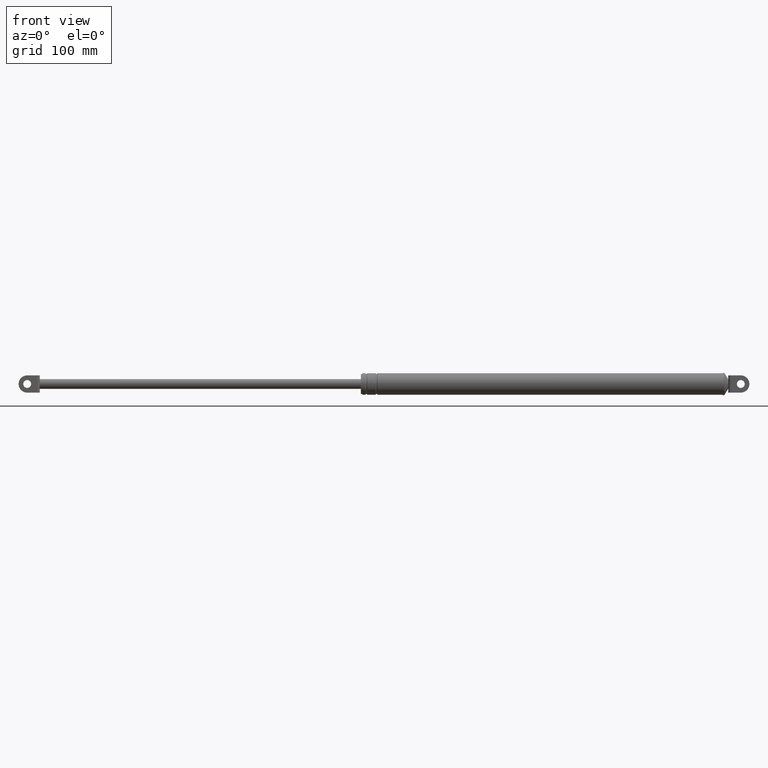
[diagram: clean part render]
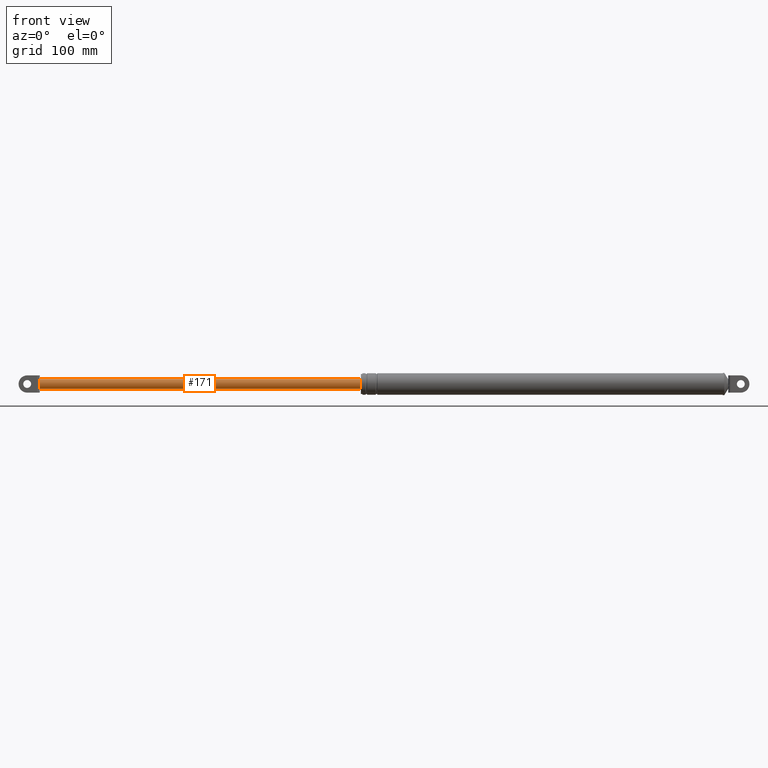
[diagram: same view with one face highlighted and labeled with its STEP entity id]
A machine part, front view. The second image highlights one B-rep face of the part: STEP entity #171.
In plain terms, the highlighted cylindrical surface (edge-blend (fillet) strip) has radius 6.25 mm, axis along (1, 0, 0).
Its self-contained STEP definition (entity closure, byte-faithful):
#171=ADVANCED_FACE('',(#777),#776,.T.);
#776=CYLINDRICAL_SURFACE('',#1374,6.25000000000E+000);
#777=FACE_OUTER_BOUND('',#1375,.T.);
#1371=CARTESIAN_POINT('',(0.00000000000E+000,0.00000000000E+000,1.76355077162E+002));
#1372=DIRECTION('',(1.00000000000E+000,-0.00000000000E+000,-0.00000000000E+000));
#1373=DIRECTION('',(-0.00000000000E+000,-0.00000000000E+000,-1.00000000000E+000));
#1374=AXIS2_PLACEMENT_3D('',#1371,#1372,#1373);
#1375=EDGE_LOOP('',(#1686,#1687,#1688,#1689,#1690,#1691));
#1686=ORIENTED_EDGE('',*,*,#1832,.F.);
#1687=ORIENTED_EDGE('',*,*,#1811,.F.);
#1688=ORIENTED_EDGE('',*,*,#1841,.F.);
#1689=ORIENTED_EDGE('',*,*,#1858,.T.);
#1690=ORIENTED_EDGE('',*,*,#1826,.T.);
#1691=ORIENTED_EDGE('',*,*,#1859,.F.);
#1811=EDGE_CURVE('',#2542,#2549,#2550,.T.);
#1826=EDGE_CURVE('',#2651,#2652,#2653,.T.);
#1832=EDGE_CURVE('',#2549,#2691,#2692,.T.);
#1841=EDGE_CURVE('',#2746,#2542,#2753,.T.);
#1858=EDGE_CURVE('',#2746,#2651,#2862,.T.);
#1859=EDGE_CURVE('',#2691,#2652,#2868,.T.);
#2542=VERTEX_POINT('',#3336);
#2549=VERTEX_POINT('',#3341);
#2550=CIRCLE('',#3345,6.25000000000E+000);
#2651=VERTEX_POINT('',#3414);
#2652=VERTEX_POINT('',#3415);
#2653=CIRCLE('',#3419,6.25000000000E+000);
#2691=VERTEX_POINT('',#3439);
#2692=CIRCLE('',#3443,6.25000000000E+000);
#2746=VERTEX_POINT('',#3475);
#2753=CIRCLE('',#3483,6.25000000000E+000);
#2862=(BOUNDED_CURVE() B_SPLINE_CURVE(1,(#3544,#3545),.UNSPECIFIED.,.F.,.F.) B_SPLINE_CURVE_WITH_KNOTS((2,2),(2.33100232674E-002,9.76689976703E-001),.UNSPECIFIED.) CURVE() GEOMETRIC_REPRESENTATION_ITEM() RATIONAL_B_SPLINE_CURVE((1.00000000000E+000,1.00000000000E+000)) REPRESENTATION_ITEM('') );
#2868=(BOUNDED_CURVE() B_SPLINE_CURVE(1,(#3546,#3547),.UNSPECIFIED.,.F.,.F.) B_SPLINE_CURVE_WITH_KNOTS((2,2),(2.33100233100E-002,9.76689976690E-001),.UNSPECIFIED.) CURVE() GEOMETRIC_REPRESENTATION_ITEM() RATIONAL_B_SPLINE_CURVE((7.50000000000E-001,7.50000000000E-001)) REPRESENTATION_ITEM('') );
#3336=CARTESIAN_POINT('',(-1.97266142833E+002,-5.49999700000E+000,1.73386486082E+002));
#3341=CARTESIAN_POINT('',(-1.97266142833E+002,-5.49999700000E+000,1.79323668242E+002));
#3342=CARTESIAN_POINT('',(-1.97266142833E+002,0.00000000000E+000,1.76355077162E+002));
#3343=DIRECTION('',(-1.00000000000E+000,0.00000000000E+000,0.00000000000E+000));
#3344=DIRECTION('',(-0.00000000000E+000,-0.00000000000E+000,-1.00000000000E+000));
#3345=AXIS2_PLACEMENT_3D('',#3342,#3343,#3344);
#3414=CARTESIAN_POINT('',(2.11733857167E+002,-2.96059473233E-016,1.70105077162E+002));
#3415=CARTESIAN_POINT('',(2.11733857167E+002,0.00000000000E+000,1.82605077162E+002));
#3416=CARTESIAN_POINT('',(2.11733857167E+002,0.00000000000E+000,1.76355077162E+002));
#3417=DIRECTION('',(-1.00000000000E+000,0.00000000000E+000,0.00000000000E+000));
#3418=DIRECTION('',(0.00000000000E+000,-1.22460635382E-016,1.00000000000E+000));
#3419=AXIS2_PLACEMENT_3D('',#3416,#3417,#3418);
#3439=CARTESIAN_POINT('',(-1.97266142833E+002,7.89135251597E-007,1.82605077162E+002));
#3440=CARTESIAN_POINT('',(-1.97266142833E+002,0.00000000000E+000,1.76355077162E+002));
#3441=DIRECTION('',(-1.00000000000E+000,0.00000000000E+000,0.00000000000E+000));
#3442=DIRECTION('',(-0.00000000000E+000,-0.00000000000E+000,-1.00000000000E+000));
#3443=AXIS2_PLACEMENT_3D('',#3440,#3441,#3442);
#3475=CARTESIAN_POINT('',(-1.97266142833E+002,4.27303968347E-012,1.70105077162E+002));
#3480=CARTESIAN_POINT('',(-1.97266142833E+002,0.00000000000E+000,1.76355077162E+002));
#3481=DIRECTION('',(-1.00000000000E+000,0.00000000000E+000,0.00000000000E+000));
#3482=DIRECTION('',(-0.00000000000E+000,8.79999520000E-001,-4.74974572793E-001));
#3483=AXIS2_PLACEMENT_3D('',#3480,#3481,#3482);
#3544=CARTESIAN_POINT('',(-1.97266142851E+002,0.00000000000E+000,1.70105077162E+002));
#3545=CARTESIAN_POINT('',(2.11733857172E+002,0.00000000000E+000,1.70105077162E+002));
#3546=CARTESIAN_POINT('',(-1.97266142833E+002,-2.96059473233E-016,1.82605077162E+002));
#3547=CARTESIAN_POINT('',(2.11733857167E+002,-2.96059473233E-016,1.82605077162E+002));